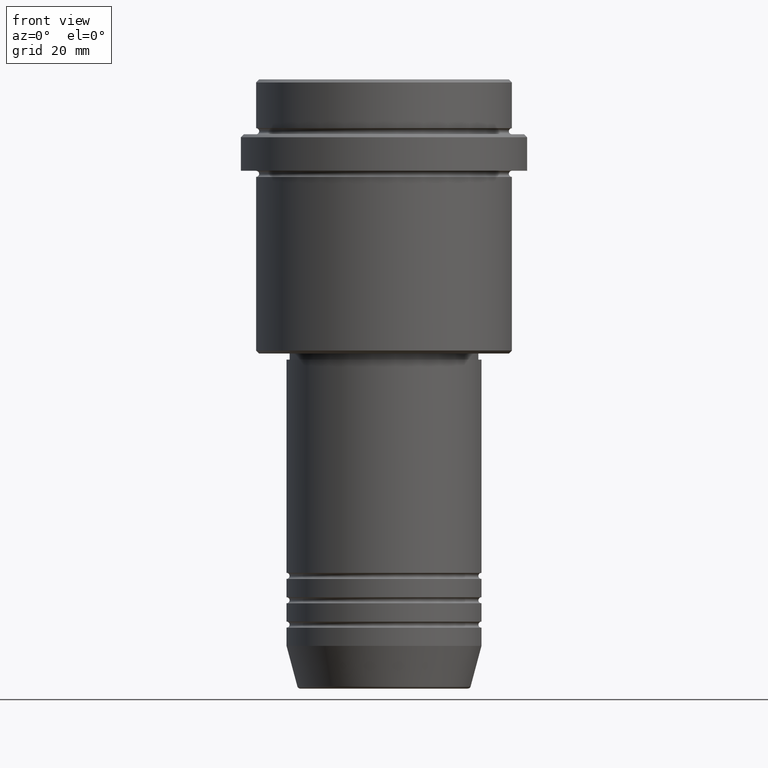
[diagram: clean part render]
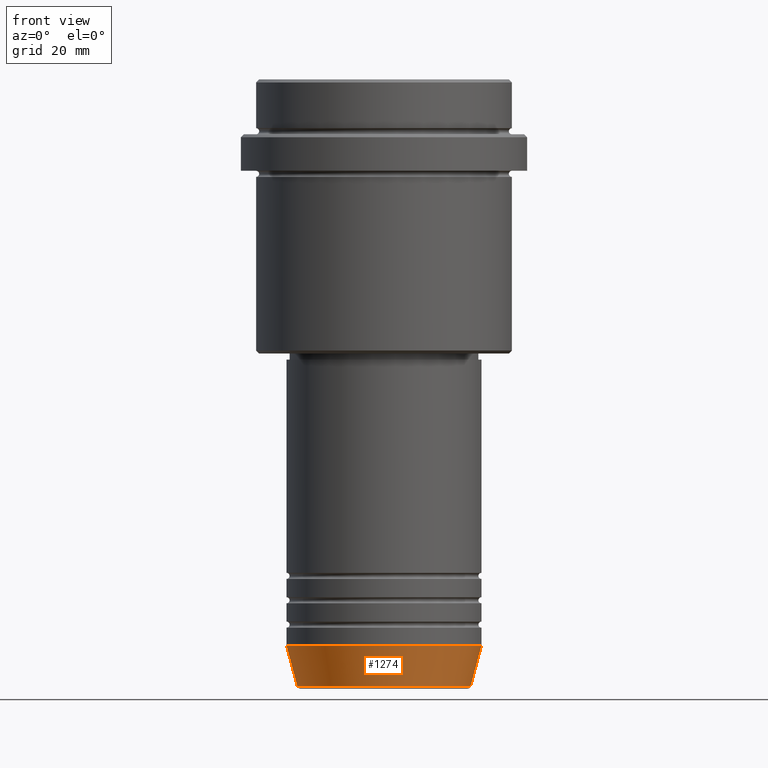
[diagram: same view with one face highlighted and labeled with its STEP entity id]
A machine part, front view. The second image highlights one B-rep face of the part: STEP entity #1274.
In plain terms, the highlighted conical surface has half-angle 15 deg.
Its self-contained STEP definition (entity closure, byte-faithful):
#29 = DIRECTION ( 'NONE',  ( -0.000000000000000000, -0.000000000000000000, 1.000000000000000000 ) ) ;
#50 = VECTOR ( 'NONE', #1222, 1000.000000000000000 ) ;
#63 = CARTESIAN_POINT ( 'NONE',  ( 14.22365507213718949, 0.000000000000000000, -99.62940952255127058 ) ) ;
#106 = AXIS2_PLACEMENT_3D ( 'NONE', #999, #29, #489 ) ;
#144 = AXIS2_PLACEMENT_3D ( 'NONE', #1068, #1388, #1272 ) ;
#147 = DIRECTION ( 'NONE',  ( 1.000000000000000000, 0.000000000000000000, 0.000000000000000000 ) ) ;
#251 = ORIENTED_EDGE ( 'NONE', *, *, #1415, .T. ) ;
#305 = VECTOR ( 'NONE', #978, 1000.000000000000000 ) ;
#389 = DIRECTION ( 'NONE',  ( -0.000000000000000000, -0.000000000000000000, 1.000000000000000000 ) ) ;
#410 = ORIENTED_EDGE ( 'NONE', *, *, #855, .T. ) ;
#431 = AXIS2_PLACEMENT_3D ( 'NONE', #1139, #389, #147 ) ;
#438 = VERTEX_POINT ( 'NONE', #1150 ) ;
#456 = ORIENTED_EDGE ( 'NONE', *, *, #946, .F. ) ;
#478 = VERTEX_POINT ( 'NONE', #63 ) ;
#489 = DIRECTION ( 'NONE',  ( 1.000000000000000000, 0.000000000000000000, 0.000000000000000000 ) ) ;
#513 = ORIENTED_EDGE ( 'NONE', *, *, #635, .F. ) ;
#558 = CARTESIAN_POINT ( 'NONE',  ( -16.00000000000000000, 1.959434878635765131E-15, -93.00000000000000000 ) ) ;
#605 = VERTEX_POINT ( 'NONE', #821 ) ;
#635 = EDGE_CURVE ( 'NONE', #605, #1079, #698, .T. ) ;
#661 = LINE ( 'NONE', #1002, #305 ) ;
#698 = CIRCLE ( 'NONE', #431, 16.00000000000000000 ) ;
#721 = CIRCLE ( 'NONE', #106, 14.22365507213718949 ) ;
#780 = LINE ( 'NONE', #558, #50 ) ;
#821 = CARTESIAN_POINT ( 'NONE',  ( -16.00000000000000000, 1.959434878635765131E-15, -93.00000000000000000 ) ) ;
#855 = EDGE_CURVE ( 'NONE', #438, #478, #721, .T. ) ;
#866 = EDGE_LOOP ( 'NONE', ( #456, #410, #251, #513 ) ) ;
#946 = EDGE_CURVE ( 'NONE', #438, #605, #780, .T. ) ;
#978 = DIRECTION ( 'NONE',  ( 0.2588190451025213501, 0.000000000000000000, 0.9659258262890680902 ) ) ;
#999 = CARTESIAN_POINT ( 'NONE',  ( 0.000000000000000000, 0.000000000000000000, -99.62940952255127058 ) ) ;
#1002 = CARTESIAN_POINT ( 'NONE',  ( 16.00000000000000000, 0.000000000000000000, -93.00000000000000000 ) ) ;
#1060 = FACE_OUTER_BOUND ( 'NONE', #866, .T. ) ;
#1068 = CARTESIAN_POINT ( 'NONE',  ( 0.000000000000000000, 0.000000000000000000, -93.00000000000000000 ) ) ;
#1079 = VERTEX_POINT ( 'NONE', #1266 ) ;
#1139 = CARTESIAN_POINT ( 'NONE',  ( 0.000000000000000000, 0.000000000000000000, -93.00000000000000000 ) ) ;
#1150 = CARTESIAN_POINT ( 'NONE',  ( -14.22365507213718949, 1.850665122131323337E-15, -99.62940952255127058 ) ) ;
#1219 = CONICAL_SURFACE ( 'NONE', #144, 16.00000000000000000, 0.2617993877991500740 ) ;
#1222 = DIRECTION ( 'NONE',  ( -0.2588190451025213501, 3.169619151431772337E-17, 0.9659258262890680902 ) ) ;
#1266 = CARTESIAN_POINT ( 'NONE',  ( 16.00000000000000000, 0.000000000000000000, -93.00000000000000000 ) ) ;
#1272 = DIRECTION ( 'NONE',  ( 1.000000000000000000, 0.000000000000000000, 0.000000000000000000 ) ) ;
#1274 = ADVANCED_FACE ( 'NONE', ( #1060 ), #1219, .T. ) ;
#1388 = DIRECTION ( 'NONE',  ( -0.000000000000000000, -0.000000000000000000, 1.000000000000000000 ) ) ;
#1415 = EDGE_CURVE ( 'NONE', #478, #1079, #661, .T. ) ;